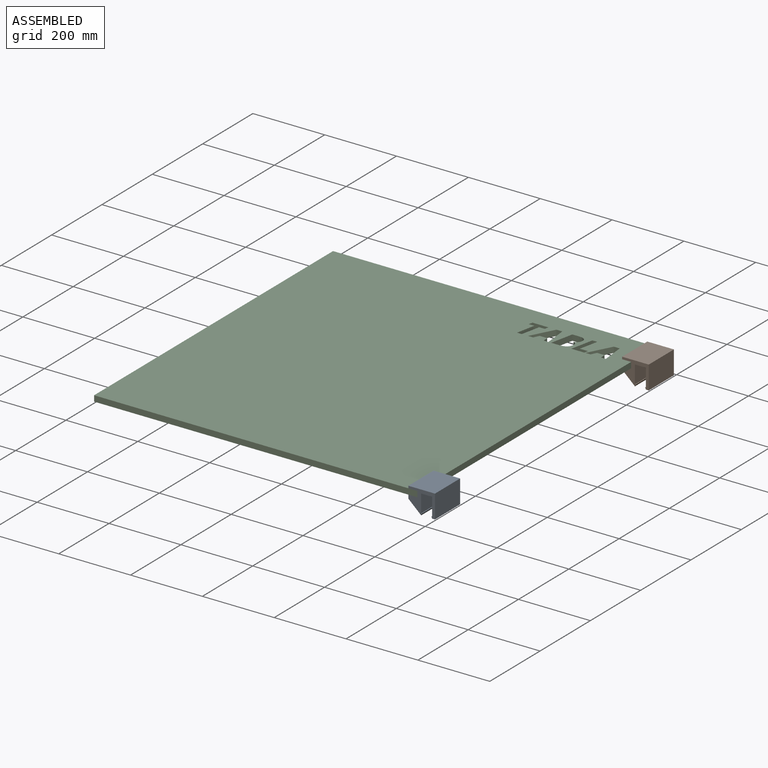
[diagram: assembled view]
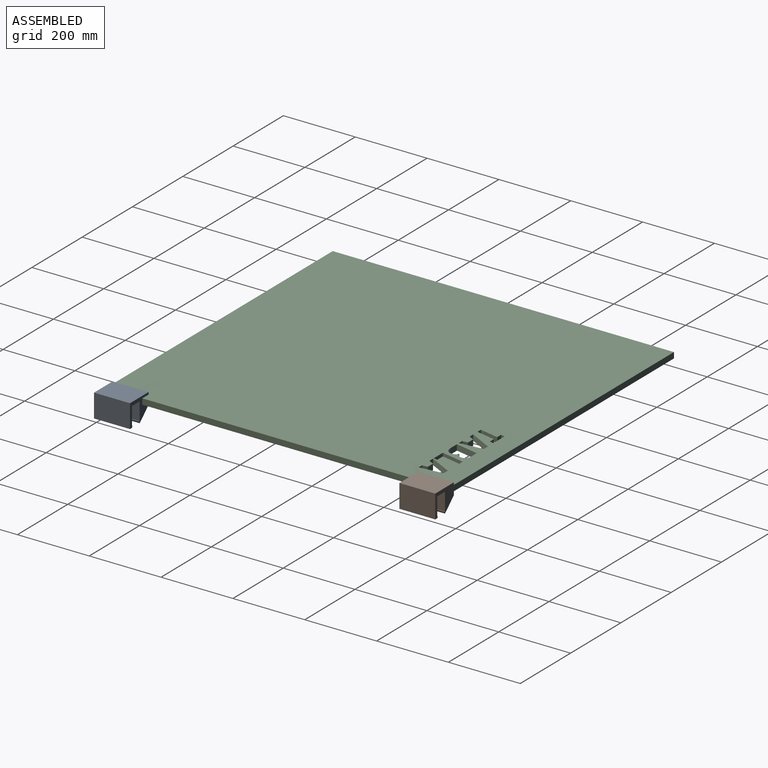
[diagram: assembled view, second angle]
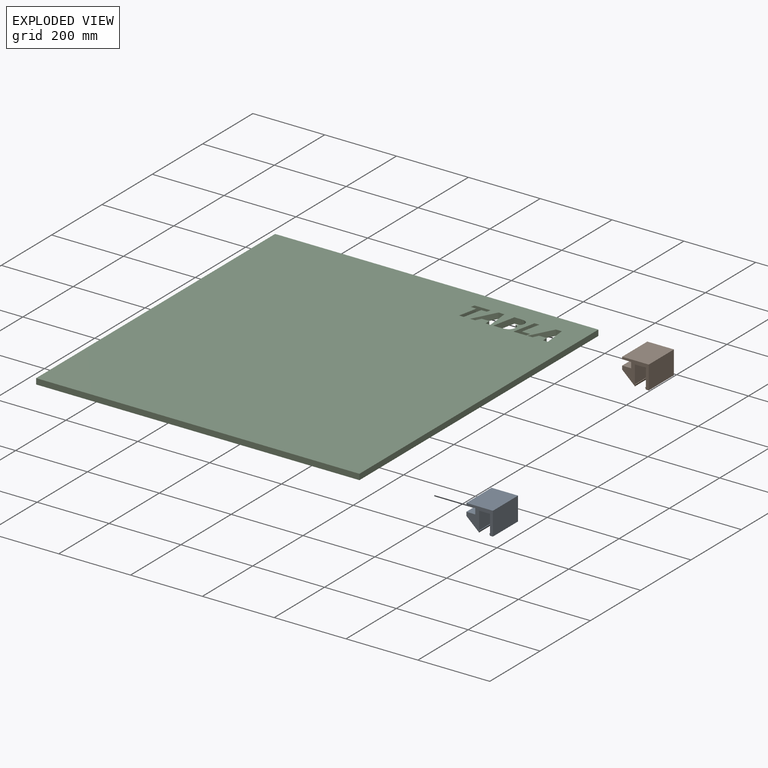
[diagram: exploded view]
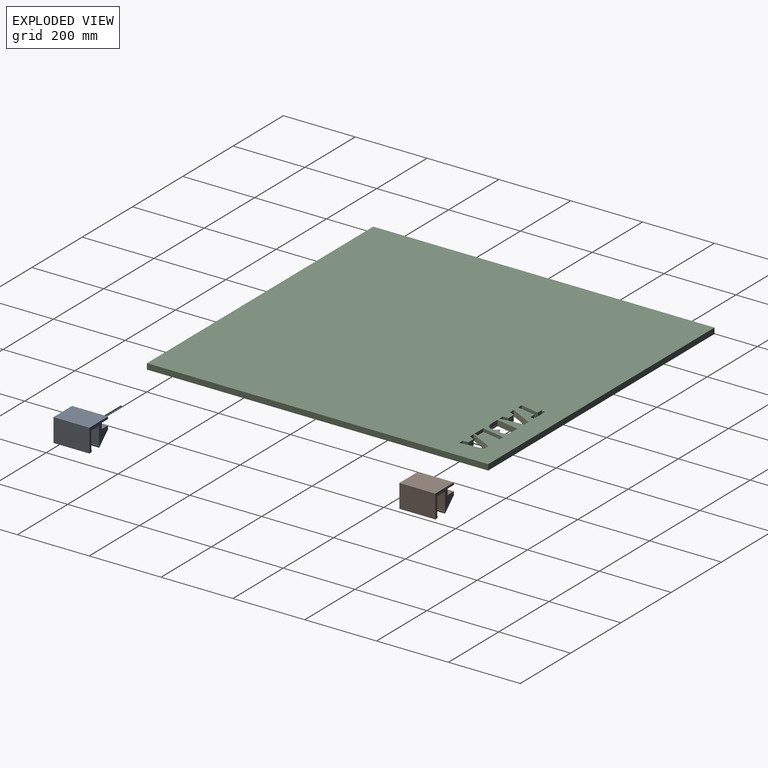
[diagram: exploded view, second angle]
ASSEMBLY  parts=3 mates=2
PART A: 18 faces, bbox 74x100x65 mm
  f0: plane 100x10.16mm, normal (-1,0,0), area 1016mm2, adj f1,f2,f10,f13
  f1: plane 74x65mm, normal (0,-1,0), area 2165.6mm2, adj f0,f3,f4,f5,f6,f7,f8,f9
  f2: plane 74x65mm, normal (0,1,0), area 2165.6mm2, adj f0,f3,f4,f5,f6,f7,f8,f9
  f3: plane 100x30.5mm, normal (0,0,1), area 3050mm2, adj f1,f2,f5,f7
  f4: plane 100x74mm, normal (0,0,-1), area 7400mm2, adj f1,f2,f6,f8
  f5: plane 100x50mm, normal (1,0,0), area 5000mm2, adj f1,f2,f3,f16
  f6: plane 100x6.34mm, normal (-1,0,0), area 634mm2, adj f1,f2,f4,f12
  f7: plane 100x50mm, normal (-1,0,0), area 5000mm2, adj f1,f2,f3,f14
  f8: plane 100x65mm, normal (1,0,0), area 6500mm2, adj f1,f2,f4,f9
  f9: plane 100x8mm, normal (0,0,1), area 800mm2, adj f1,f2,f8,f15
  f10: plane 100x25mm, normal (0,0,-1), area 2500mm2, adj f0,f1,f2,f11
  f11: plane 100x16mm, normal (-1,0,0), area 1600mm2, adj f1,f2,f10,f12
  f12: plane 100x25mm, normal (0,0,1), area 2500mm2, adj f1,f2,f6,f11
  f13: plane 100x35.5mm, normal (-0.68,0,0.74), area 4813mm2, adj f0,f1,f2,f17
  f14: plane 100x2mm, normal (0,0,-1), area 200mm2, adj f1,f2,f7,f15
  f15: plane 100x5mm, normal (-0.93,0,0.37), area 538.5mm2, adj f1,f2,f9,f14
  f16: plane 100x2mm, normal (0,0,-1), area 200mm2, adj f1,f2,f5,f17
  f17: plane 100x5mm, normal (0.93,0,0.37), area 538.5mm2, adj f1,f2,f13,f16
PART B: same geometry as A
PART C: 48 faces, bbox 900x950x16 mm
  f0: plane 950x900mm, normal (0,0,1), area 846082.2mm2, adj f2,f3,f4,f5,f6,f7,f8,f9
  f1: plane 950x900mm, normal (0,0,-1), area 846082.2mm2, adj f2,f3,f4,f5,f6,f7,f8,f9
  f2: plane 900x16mm, normal (0,-1,0), area 14400mm2, adj f0,f1,f3,f5
  f3: plane 950x16mm, normal (1,0,0), area 15200mm2, adj f0,f1,f2,f4
  f4: plane 900x16mm, normal (0,1,0), area 14400mm2, adj f0,f1,f3,f5
  f5: plane 950x16mm, normal (-1,0,0), area 15200mm2, adj f0,f1,f2,f4
  f6: plane 16x13.47mm, normal (0,1,0), area 215.4mm2, adj f0,f1,f7,f13
  f7: plane 53.17x16mm, normal (-0.98,0.21,0), area 869.4mm2, adj f0,f1,f6,f8
  f8: plane 16x15.58mm, normal (0,1,0), area 249.4mm2, adj f0,f1,f7,f9
  f9: plane 16x11.39mm, normal (-0.98,0.21,0), area 186.3mm2, adj f0,f1,f8,f10
  f10: plane 44.59x16mm, normal (0,-1,0), area 713.5mm2, adj f0,f1,f9,f11
  f11: plane 16x11.39mm, normal (0.98,-0.21,0), area 186.3mm2, adj f0,f1,f10,f12
  f12: plane 16x15.54mm, normal (0,1,0), area 248.7mm2, adj f0,f1,f11,f13
  f13: plane 53.17x16mm, normal (0.98,-0.21,0), area 869.4mm2, adj f0,f1,f6,f12
  f14: extruded ~16x10.75mm, area 199.1mm2, adj f0,f1,f15,f25
  f15: extruded ~16x10.93mm, area 188.4mm2, adj f0,f1,f14,f16
  f16: extruded ~16x10.41mm, area 193.7mm2, adj f0,f1,f15,f17
  f17: plane 16x0.27mm, normal (-1,0,0), area 4.3mm2, adj f0,f1,f16,f18
  f18: extruded ~16x7.04mm, area 133.8mm2, adj f0,f1,f17,f19
  f19: extruded ~16x7.96mm, area 137mm2, adj f0,f1,f18,f20
  f20: extruded ~16x15.59mm, area 281.7mm2, adj f0,f1,f19,f21
  f21: extruded ~18.68x16mm, area 317.6mm2, adj f0,f1,f20,f22
  f22: plane 23.05x16mm, normal (0,1,0), area 368.7mm2, adj f0,f1,f21,f23
  f23: plane 64.56x16mm, normal (0.98,-0.21,0), area 1055.7mm2, adj f0,f1,f22,f24
  f24: plane 18.82x16mm, normal (0,-1,0), area 301.1mm2, adj f0,f1,f23,f25
  f25: extruded ~16x15.27mm, area 254.7mm2, adj f0,f1,f14,f24
  f26: plane 20.88x16mm, normal (0,1,0), area 334.1mm2, adj f0,f1,f27,f33
  f27: plane 16x15.37mm, normal (1,0.07,0), area 246.5mm2, adj f0,f1,f26,f28
  f28: plane 16x13.11mm, normal (0,1,0), area 209.8mm2, adj f0,f1,f27,f29
  f29: plane 64.83x16mm, normal (-1,-0.1,0), area 1042.4mm2, adj f0,f1,f28,f30
  f30: plane 16.48x16mm, normal (0,-1,0), area 263.6mm2, adj f0,f1,f29,f31
  f31: plane 64.83x33.81mm, normal (0.89,-0.46,0), area 1169.8mm2, adj f0,f1,f30,f32
  f32: plane 16x14.13mm, normal (0,1,0), area 226.1mm2, adj f0,f1,f31,f33
  f33: plane 16x15.37mm, normal (-0.9,0.44,0), area 274.3mm2, adj f0,f1,f26,f32
  f34: plane 20.88x16mm, normal (0,1,0), area 334.1mm2, adj f0,f1,f35,f41
  f35: plane 16x15.37mm, normal (1,0.07,0), area 246.5mm2, adj f0,f1,f34,f36
  f36: plane 16x13.11mm, normal (0,1,0), area 209.8mm2, adj f0,f1,f35,f37
  f37: plane 64.83x16mm, normal (-1,-0.1,0), area 1042.4mm2, adj f0,f1,f36,f38
  f38: plane 16.48x16mm, normal (0,-1,0), area 263.6mm2, adj f0,f1,f37,f39
  f39: plane 64.83x33.81mm, normal (0.89,-0.46,0), area 1169.8mm2, adj f0,f1,f38,f40
  f40: plane 16x14.13mm, normal (0,1,0), area 226.1mm2, adj f0,f1,f39,f41
  f41: plane 16x15.37mm, normal (-0.9,0.44,0), area 274.3mm2, adj f0,f1,f34,f40
  f42: plane 64.56x16mm, normal (0.98,-0.21,0), area 1055.7mm2, adj f0,f1,f43,f47
  f43: plane 36.07x16mm, normal (0,1,0), area 577.2mm2, adj f0,f1,f42,f44
  f44: plane 16x11.3mm, normal (-0.98,0.21,0), area 184.8mm2, adj f0,f1,f43,f45
  f45: plane 22.61x16mm, normal (0,-1,0), area 361.7mm2, adj f0,f1,f44,f46
  f46: plane 53.25x16mm, normal (-0.98,0.21,0), area 871mm2, adj f0,f1,f45,f47
  f47: plane 16x13.52mm, normal (0,-1,0), area 216.3mm2, adj f0,f1,f42,f46
PLACE A rot(axis=(1,0,0),180deg) t=(-1.71,-541.56,252.99)mm
PLACE B rot(axis=(1,0,0),180deg) t=(-1.71,308.44,252.99)mm
PLACE C t=(367.03,-232.48,230.65)mm
MATE fastened A.f11 <-> C.f3  axis (-1,0,0) through (-27.46,-591.56,238.65)mm
MATE fastened B.f11 <-> C.f3  axis (-1,0,0) through (-27.46,358.44,238.65)mm
